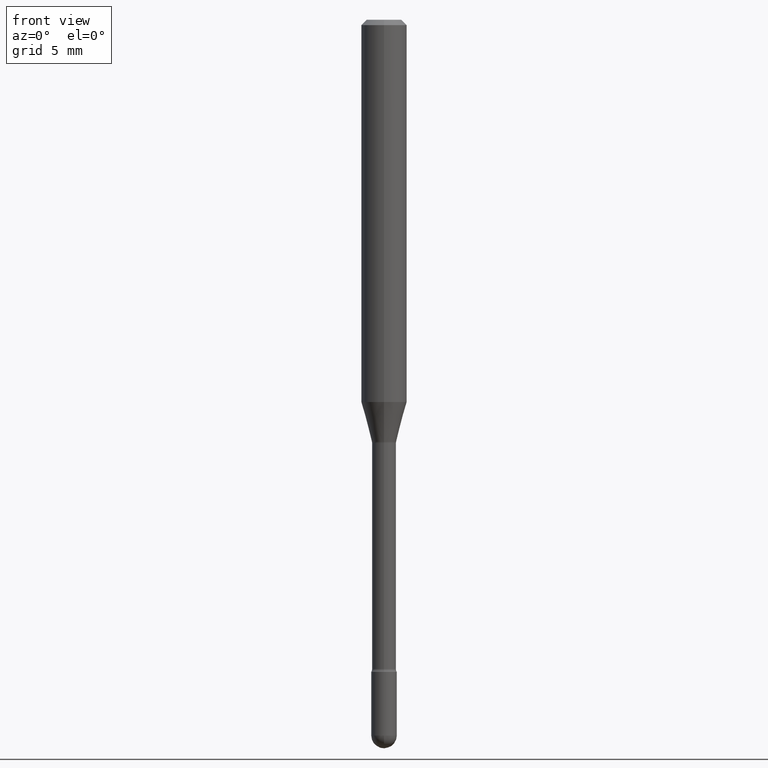
[diagram: clean part render]
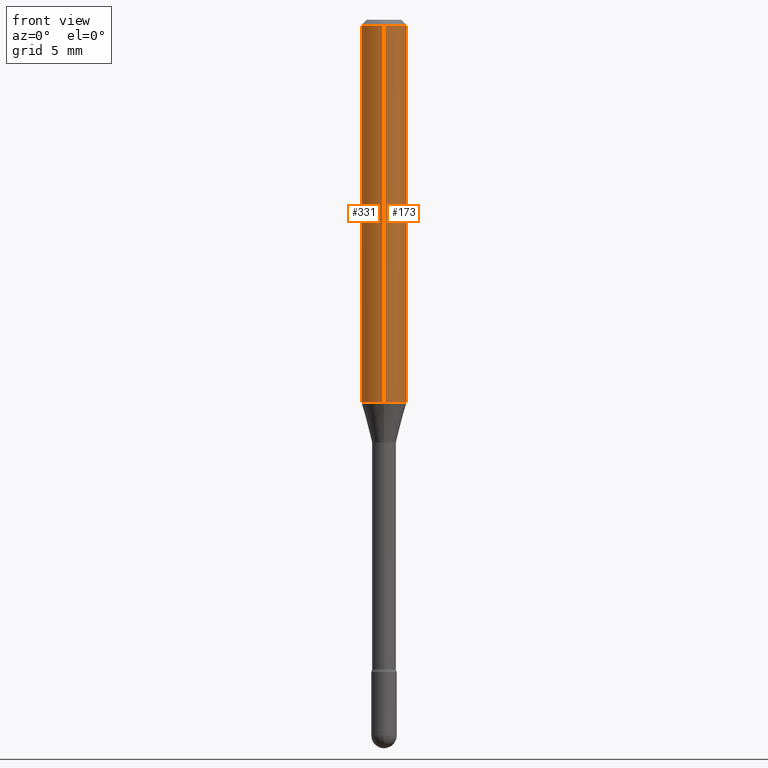
[diagram: same view with one multi-face feature highlighted, each face labeled with its STEP entity id]
A machine part, front view. The highlighted faces form ONE feature: a constant-radius fillet chain: 2 tangent blend faces with common blend radius 1.5875 mm. The faces share edges in the B-rep.
Their STEP definitions:
[1] entity #173 (Cylinder):
#8 = FACE_OUTER_BOUND ( 'NONE', #407, .T. ) ;
#58 = CIRCLE ( 'NONE', #323, 0.06250000000000000000 ) ;
#76 = VERTEX_POINT ( 'NONE', #351 ) ;
#80 = VECTOR ( 'NONE', #130, 39.37007874015748143 ) ;
#101 = CARTESIAN_POINT ( 'NONE',  ( -4.364351673553658835E-16, -0.06250000000000366374, -1.049531296095961297 ) ) ;
#105 = ORIENTED_EDGE ( 'NONE', *, *, #250, .T. ) ;
#107 = DIRECTION ( 'NONE',  ( -2.445476960663988921E-29, 3.491469661165304910E-15, 1.000000000000000000 ) ) ;
#127 = LINE ( 'NONE', #347, #80 ) ;
#130 = DIRECTION ( 'NONE',  ( -2.445476960663988921E-29, 3.491469661165304910E-15, 1.000000000000000000 ) ) ;
#137 = CARTESIAN_POINT ( 'NONE',  ( -4.364351673553912750E-16, -0.06250000000000005551, -0.01499999999999986587 ) ) ;
#145 = VERTEX_POINT ( 'NONE', #101 ) ;
#150 = DIRECTION ( 'NONE',  ( -2.445476960663988921E-29, 3.491469661165304910E-15, 1.000000000000000000 ) ) ;
#161 = ORIENTED_EDGE ( 'NONE', *, *, #537, .F. ) ;
#173 = ADVANCED_FACE ( 'NONE', ( #8 ), #179, .T. ) ;
#174 = AXIS2_PLACEMENT_3D ( 'NONE', #491, #107, #278 ) ;
#179 = CYLINDRICAL_SURFACE ( 'NONE', #315, 0.06250000000000000000 ) ;
#187 = EDGE_CURVE ( 'NONE', #548, #76, #265, .T. ) ;
#226 = DIRECTION ( 'NONE',  ( -2.445476960663988921E-29, 3.491469661165304910E-15, 1.000000000000000000 ) ) ;
#248 = VERTEX_POINT ( 'NONE', #554 ) ;
#249 = CARTESIAN_POINT ( 'NONE',  ( 4.440892098500625669E-16, 0.06250000000000000000, 2.598565450684145310E-16 ) ) ;
#250 = EDGE_CURVE ( 'NONE', #145, #248, #58, .T. ) ;
#265 = CIRCLE ( 'NONE', #174, 0.06250000000000000000 ) ;
#266 = CARTESIAN_POINT ( 'NONE',  ( -1.169113584055446105E-44, 1.669184350826100908E-30, 4.780733988912460139E-16 ) ) ;
#278 = DIRECTION ( 'NONE',  ( -6.982962677686265922E-15, -1.000000000000000000, 3.483106191921935554E-15 ) ) ;
#313 = EDGE_CURVE ( 'NONE', #248, #76, #464, .T. ) ;
#315 = AXIS2_PLACEMENT_3D ( 'NONE', #266, #226, #531 ) ;
#323 = AXIS2_PLACEMENT_3D ( 'NONE', #381, #150, #372 ) ;
#347 = CARTESIAN_POINT ( 'NONE',  ( -4.364351673553916201E-16, -0.06250000000000000000, 6.962902527140776941E-16 ) ) ;
#351 = CARTESIAN_POINT ( 'NONE',  ( 4.440892098500883528E-16, 0.06249999999999993755, -0.01500000000000030129 ) ) ;
#368 = ORIENTED_EDGE ( 'NONE', *, *, #187, .F. ) ;
#372 = DIRECTION ( 'NONE',  ( -6.982962677686265922E-15, -1.000000000000000000, 4.370956789862821150E-15 ) ) ;
#378 = VECTOR ( 'NONE', #551, 39.37007874015748143 ) ;
#381 = CARTESIAN_POINT ( 'NONE',  ( 2.566604604098489247E-29, -3.664406678762549915E-15, -1.049531296095961519 ) ) ;
#407 = EDGE_LOOP ( 'NONE', ( #105, #458, #368, #161 ) ) ;
#458 = ORIENTED_EDGE ( 'NONE', *, *, #313, .T. ) ;
#464 = LINE ( 'NONE', #249, #378 ) ;
#491 = CARTESIAN_POINT ( 'NONE',  ( 3.668215440996003596E-31, -5.237204491747986406E-17, -0.01500000000000008271 ) ) ;
#531 = DIRECTION ( 'NONE',  ( -6.982962677686265922E-15, -1.000000000000000000, 3.491469661165305699E-15 ) ) ;
#537 = EDGE_CURVE ( 'NONE', #145, #548, #127, .T. ) ;
#548 = VERTEX_POINT ( 'NONE', #137 ) ;
#551 = DIRECTION ( 'NONE',  ( -2.445476960663988921E-29, 3.491469661165304910E-15, 1.000000000000000000 ) ) ;
#554 = CARTESIAN_POINT ( 'NONE',  ( 4.440892098500882541E-16, 0.06249999999999633626, -1.049531296095961741 ) ) ;
[2] entity #331 (Cylinder):
#13 = AXIS2_PLACEMENT_3D ( 'NONE', #63, #18, #191 ) ;
#18 = DIRECTION ( 'NONE',  ( -2.445476960663988921E-29, 3.491469661165304910E-15, 1.000000000000000000 ) ) ;
#26 = DIRECTION ( 'NONE',  ( -6.982962677686265922E-15, -1.000000000000000000, 3.491469661165305699E-15 ) ) ;
#61 = CARTESIAN_POINT ( 'NONE',  ( 3.668215440996003596E-31, -5.237204491747986406E-17, -0.01500000000000008271 ) ) ;
#63 = CARTESIAN_POINT ( 'NONE',  ( 2.566604604098489247E-29, -3.664406678762549915E-15, -1.049531296095961519 ) ) ;
#71 = DIRECTION ( 'NONE',  ( -2.445476960663988921E-29, 3.491469661165304910E-15, 1.000000000000000000 ) ) ;
#76 = VERTEX_POINT ( 'NONE', #351 ) ;
#80 = VECTOR ( 'NONE', #130, 39.37007874015748143 ) ;
#101 = CARTESIAN_POINT ( 'NONE',  ( -4.364351673553658835E-16, -0.06250000000000366374, -1.049531296095961297 ) ) ;
#127 = LINE ( 'NONE', #347, #80 ) ;
#130 = DIRECTION ( 'NONE',  ( -2.445476960663988921E-29, 3.491469661165304910E-15, 1.000000000000000000 ) ) ;
#137 = CARTESIAN_POINT ( 'NONE',  ( -4.364351673553912750E-16, -0.06250000000000005551, -0.01499999999999986587 ) ) ;
#145 = VERTEX_POINT ( 'NONE', #101 ) ;
#147 = AXIS2_PLACEMENT_3D ( 'NONE', #461, #71, #26 ) ;
#151 = ORIENTED_EDGE ( 'NONE', *, *, #537, .T. ) ;
#178 = DIRECTION ( 'NONE',  ( -2.445476960663988921E-29, 3.491469661165304910E-15, 1.000000000000000000 ) ) ;
#189 = EDGE_CURVE ( 'NONE', #248, #145, #230, .T. ) ;
#191 = DIRECTION ( 'NONE',  ( -6.982962677686265922E-15, -1.000000000000000000, 4.370956789862821150E-15 ) ) ;
#230 = CIRCLE ( 'NONE', #13, 0.06250000000000000000 ) ;
#248 = VERTEX_POINT ( 'NONE', #554 ) ;
#249 = CARTESIAN_POINT ( 'NONE',  ( 4.440892098500625669E-16, 0.06250000000000000000, 2.598565450684145310E-16 ) ) ;
#269 = ORIENTED_EDGE ( 'NONE', *, *, #313, .F. ) ;
#274 = CIRCLE ( 'NONE', #478, 0.06250000000000000000 ) ;
#283 = ORIENTED_EDGE ( 'NONE', *, *, #552, .F. ) ;
#285 = FACE_OUTER_BOUND ( 'NONE', #366, .T. ) ;
#313 = EDGE_CURVE ( 'NONE', #248, #76, #464, .T. ) ;
#318 = DIRECTION ( 'NONE',  ( -6.982962677686265922E-15, -1.000000000000000000, 3.483106191921935554E-15 ) ) ;
#331 = ADVANCED_FACE ( 'NONE', ( #285 ), #420, .T. ) ;
#347 = CARTESIAN_POINT ( 'NONE',  ( -4.364351673553916201E-16, -0.06250000000000000000, 6.962902527140776941E-16 ) ) ;
#351 = CARTESIAN_POINT ( 'NONE',  ( 4.440892098500883528E-16, 0.06249999999999993755, -0.01500000000000030129 ) ) ;
#366 = EDGE_LOOP ( 'NONE', ( #269, #536, #151, #283 ) ) ;
#378 = VECTOR ( 'NONE', #551, 39.37007874015748143 ) ;
#420 = CYLINDRICAL_SURFACE ( 'NONE', #147, 0.06250000000000000000 ) ;
#461 = CARTESIAN_POINT ( 'NONE',  ( -1.169113584055446105E-44, 1.669184350826100908E-30, 4.780733988912460139E-16 ) ) ;
#464 = LINE ( 'NONE', #249, #378 ) ;
#478 = AXIS2_PLACEMENT_3D ( 'NONE', #61, #178, #318 ) ;
#536 = ORIENTED_EDGE ( 'NONE', *, *, #189, .T. ) ;
#537 = EDGE_CURVE ( 'NONE', #145, #548, #127, .T. ) ;
#548 = VERTEX_POINT ( 'NONE', #137 ) ;
#551 = DIRECTION ( 'NONE',  ( -2.445476960663988921E-29, 3.491469661165304910E-15, 1.000000000000000000 ) ) ;
#552 = EDGE_CURVE ( 'NONE', #76, #548, #274, .T. ) ;
#554 = CARTESIAN_POINT ( 'NONE',  ( 4.440892098500882541E-16, 0.06249999999999633626, -1.049531296095961741 ) ) ;